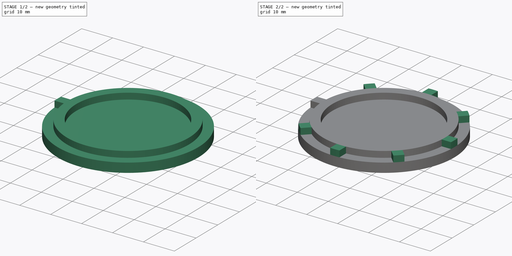
[diagram: build sequence overview — one tinted view per stage of 2, left to right]
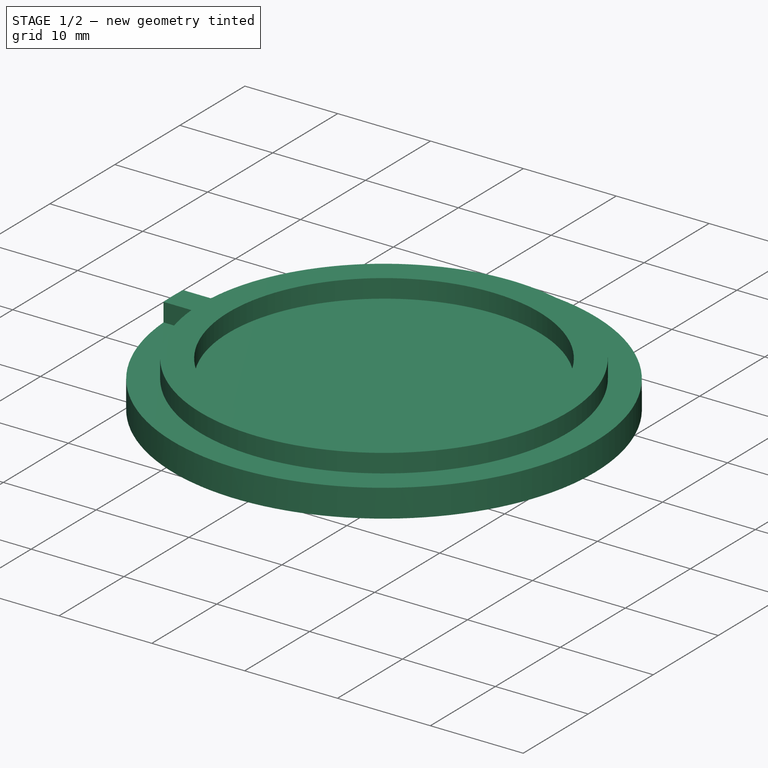
[diagram: stage 1 of 2 — iso view after this stage's code; geometry added in this stage tinted green]
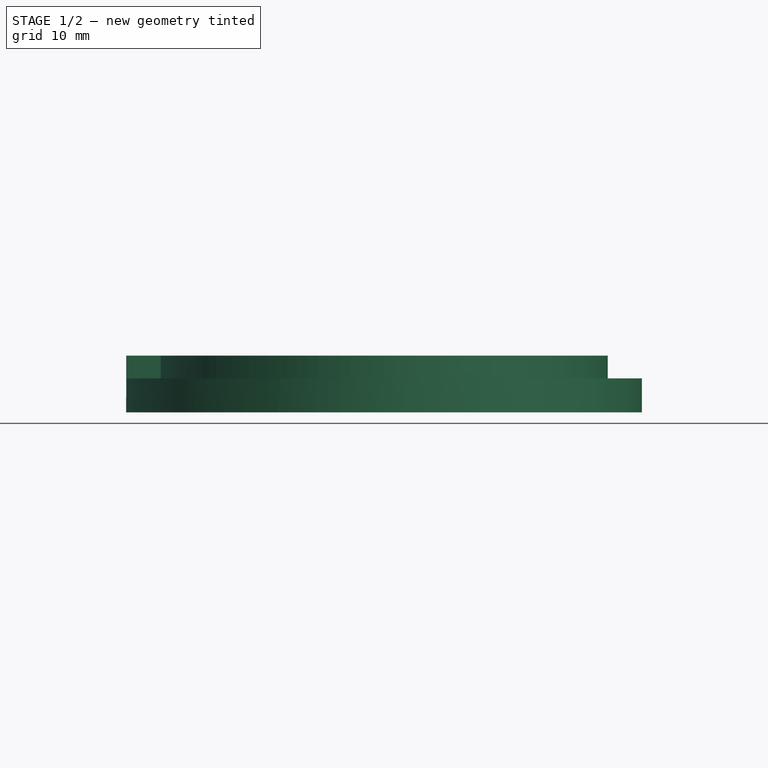
[diagram: stage 1 of 2 — front view after this stage's code; geometry added in this stage tinted green]
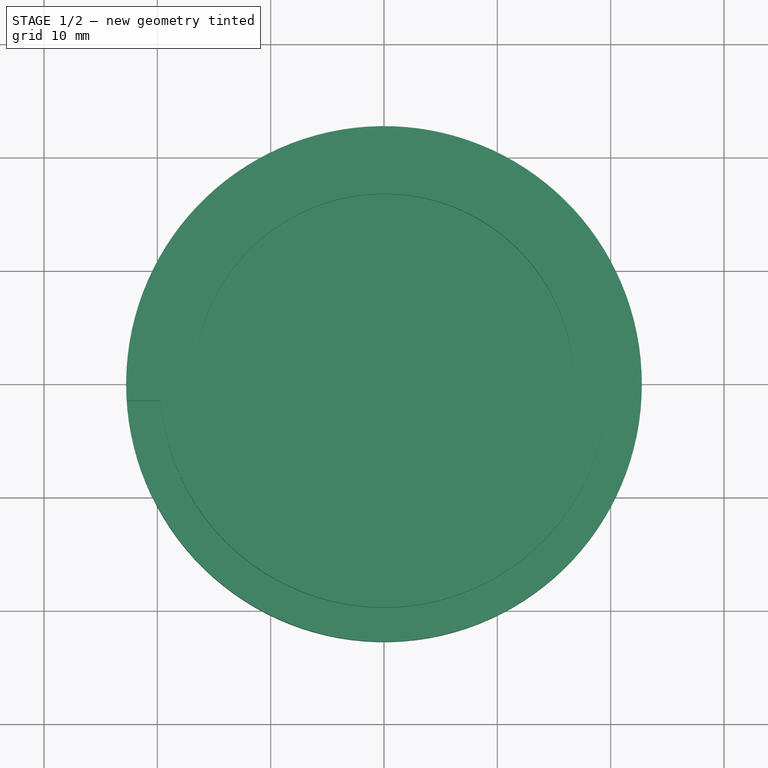
[diagram: stage 1 of 2 — top view after this stage's code; geometry added in this stage tinted green]
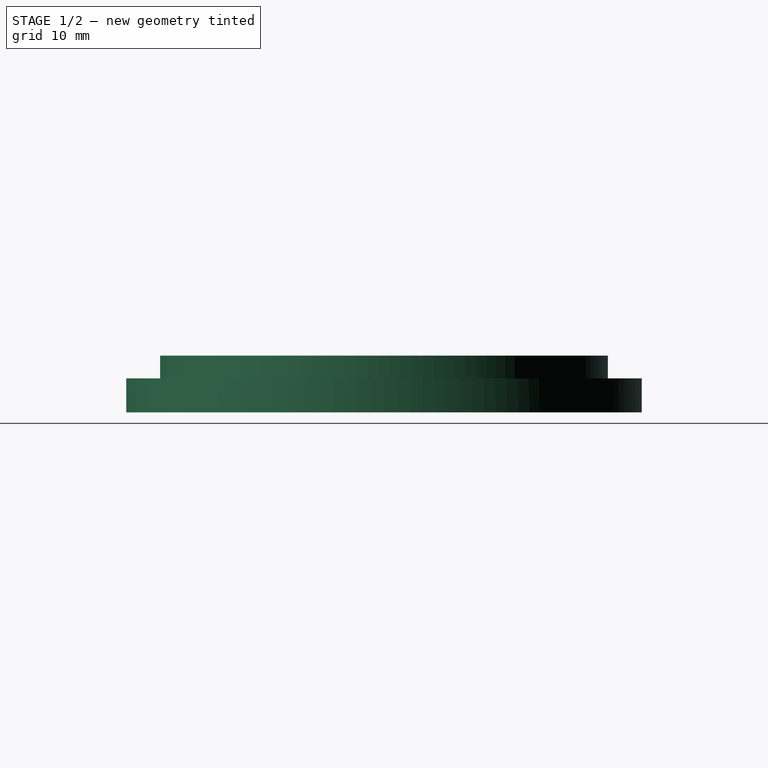
[diagram: stage 1 of 2 — right view after this stage's code; geometry added in this stage tinted green]
FCSTD DOCUMENT  (FreeCAD 0.21R33668 +26 (Git))
Label: Паз для чехла
License: All rights reserved
LicenseURL: https://en.wikipedia.org/wiki/All_rights_reserved
objects: Sketcher::SketchObject×2, PartDesign::Pad×2, PartDesign::Plane×1, PartDesign::PolarPattern×1, PartDesign::Body×1
note: 9 computed .brp shape members not serialized (recipe doc carries the construction recipe); baked Part::Feature solids carry a one-line shape summary decoded from their .brp

FEATURE [Sketcher::SketchObject] Sketch
  FullyConstrained = true
  MapMode = 5
  Support = -> [XY_Plane]
  sketch-geometry (1):
    g0: Circle CenterX=0 CenterY=0 CenterZ=0 NormalX=0 NormalY=0 NormalZ=1 AngleXU=0 Radius=22.75
  constraints (2):
    c: Coincident(g0,g-1)
    c: Diameter(g0) = 45.5
FEATURE [PartDesign::Pad] Pad
  Direction = (0,0,1)
  Length = 3
  Length2 = 10
  Profile = -> Sketch
  ReferenceAxis = -> Sketch [N_Axis]
  Type = 0
FEATURE [PartDesign::Plane] DatumPlane
  Length = 60
  MapMode = 5
  Placement = pos=(0,0,3) rot=(0,0,1;0rad)
  ResizeMode = 0
  Support = -> [Pad]
  Width = 60
FEATURE [Sketcher::SketchObject] Sketch001
  ExternalGeometry = -> [Pad]
  FullyConstrained = false
  MapMode = 5
  Placement = pos=(0,0,3) rot=(0,0,1;0rad)
  Support = -> [DatumPlane]
  sketch-geometry (11):
    g0: Circle CenterX=0 CenterY=0 CenterZ=0 NormalX=0 NormalY=0 NormalZ=1 AngleXU=0 Radius=16.75
    g1: GeomPoint X=0 Y=16.75 Z=0
    g2: GeomPoint X=0 Y=19.75 Z=0
    g3: GeomPoint X=0 Y=22.75 Z=0
    g4: ArcOfCircle CenterX=0 CenterY=0 CenterZ=0 NormalX=0 NormalY=0 NormalZ=1 AngleXU=0 Radius=19.75 StartAngle=3.21762 EndAngle=9.34876
    g5: LineSegment StartX=-19.693 StartY=1.5 StartZ=0 EndX=-22.7005 EndY=1.5 EndZ=0
    g6: LineSegment StartX=-19.693 StartY=-1.5 StartZ=0 EndX=-22.7005 EndY=-1.5 EndZ=0
    g7: LineSegment StartX=-19.75 StartY=0 StartZ=0 EndX=-19.693 EndY=1.5 EndZ=0
    g8: LineSegment StartX=-19.75 StartY=0 StartZ=0 EndX=-19.75 EndY=1.44642e-08 EndZ=0
    g9: LineSegment StartX=-19.75 StartY=0 StartZ=0 EndX=-19.693 EndY=-1.5 EndZ=0
    g10: ArcOfCircle CenterX=0 CenterY=0 CenterZ=0 NormalX=0 NormalY=0 NormalZ=1 AngleXU=0 Radius=22.75 StartAngle=3.07561 EndAngle=3.20757
  constraints (28):
    c: PointOnObject(g1,g0)
    c: PointOnObject(g3,g-3)
    c: PointOnObject(g3,g-2)
    c: PointOnObject(g2,g-2)
    c: PointOnObject(g1,g-2)
    c: DistanceY(g1,g2) = 3
    c: Coincident(g4,g0)
    c: PointOnObject(g2,g4)
    c: Coincident(g0,g-3)
    c: Horizontal(g5)
    c: PointOnObject(g6,g4)
    c: Horizontal(g6)
    c: PointOnObject(g5,g-3)
    c: PointOnObject(g7,g4)
    c: PointOnObject(g7,g-1)
    c: Coincident(g8,g7)
    c: Vertical(g8)
    c: Coincident(g9,g7)
    c: Coincident(g9,g6)
    c: Equal(g9,g7)
    c: DistanceY(g6,g5) = 3
    c: Coincident(g7,g5)
    c: Coincident(g10,g0)
    c: Coincident(g10,g5)
    c: Coincident(g10,g6)
    c: Coincident(g4,g5)
    c: PointOnObject(g4,g9)
    c: Diameter(g0) = 33.5
FEATURE [PartDesign::Pad] Pad001
  BaseFeature = -> Pad
  Direction = (0,0,1)
  Length = 2
  Length2 = 10
  Profile = -> Sketch001
  ReferenceAxis = -> Sketch001 [N_Axis]
  Type = 0
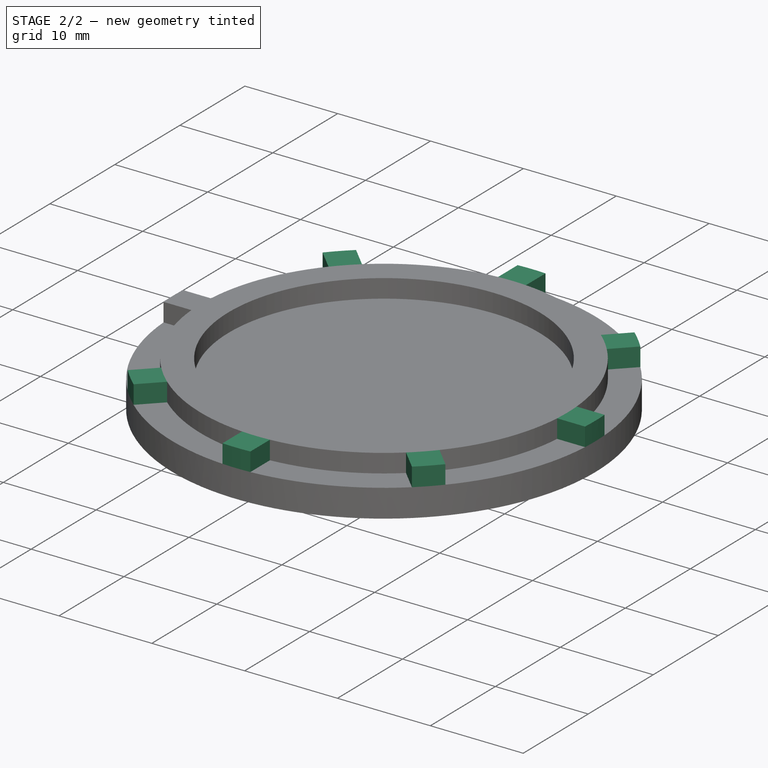
[diagram: stage 2 of 2 — iso view after this stage's code; geometry added in this stage tinted green]
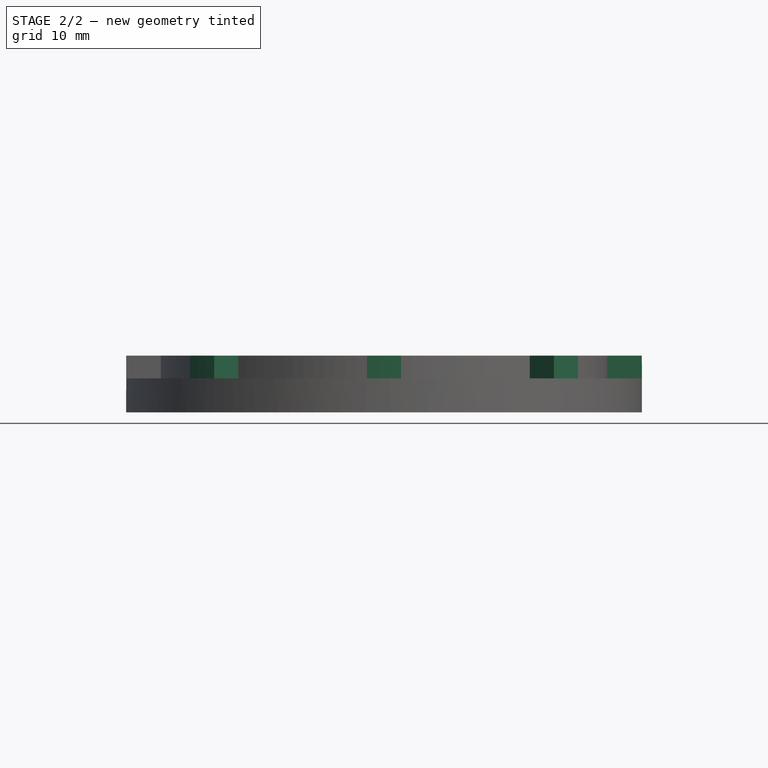
[diagram: stage 2 of 2 — front view after this stage's code; geometry added in this stage tinted green]
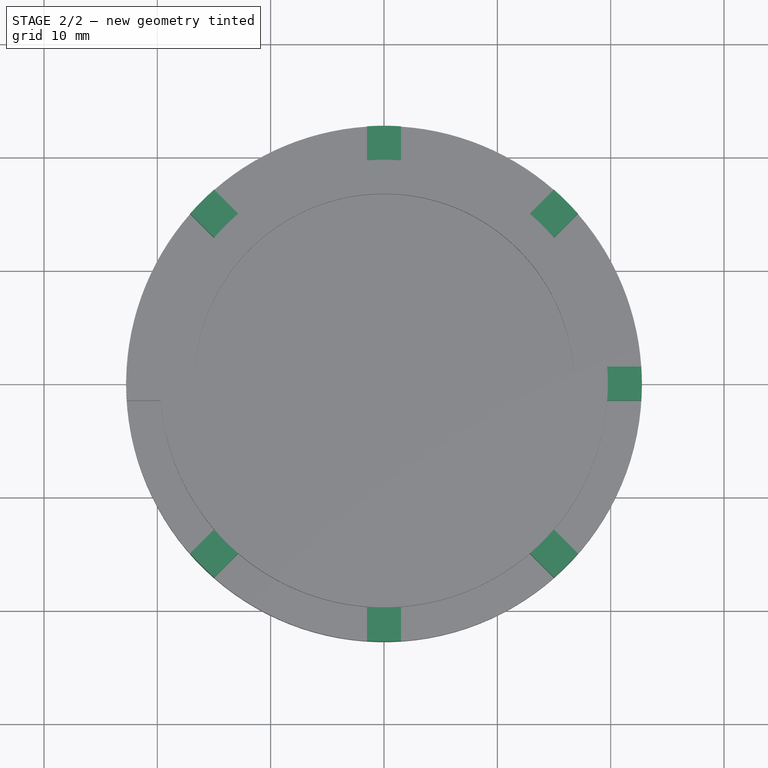
[diagram: stage 2 of 2 — top view after this stage's code; geometry added in this stage tinted green]
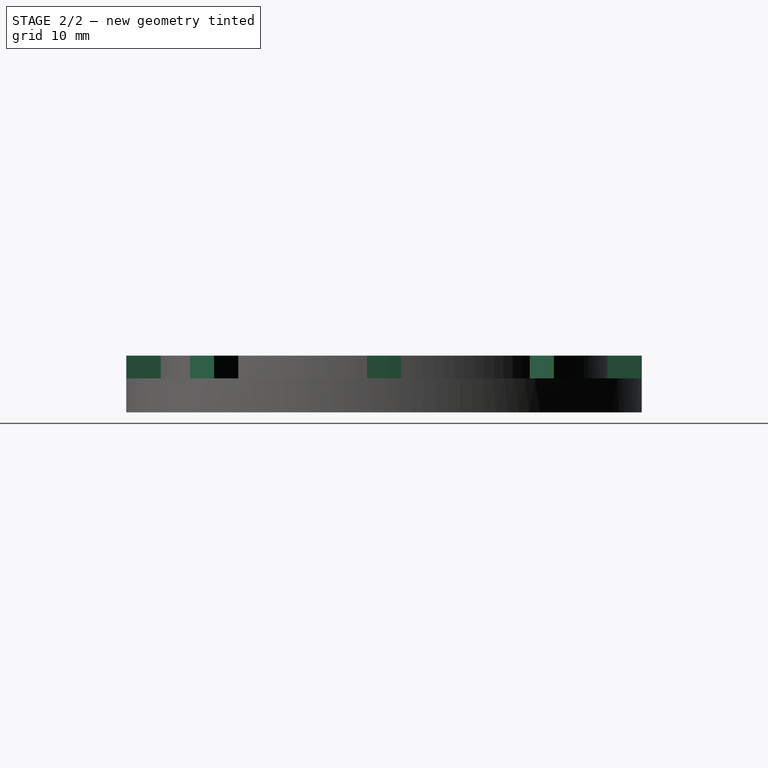
[diagram: stage 2 of 2 — right view after this stage's code; geometry added in this stage tinted green]
FEATURE [PartDesign::PolarPattern] PolarPattern
  Angle = 360
  Axis = -> Sketch001 [N_Axis]
  BaseFeature = -> Pad001
  Occurrences = 8
  Originals = -> [Pad001]
FEATURE [PartDesign::Body] Body  label="Тело"
  Group = -> [Sketch,Pad,DatumPlane,Sketch001,Pad001,PolarPattern]
  Origin = -> Origin
  Tip = -> PolarPattern
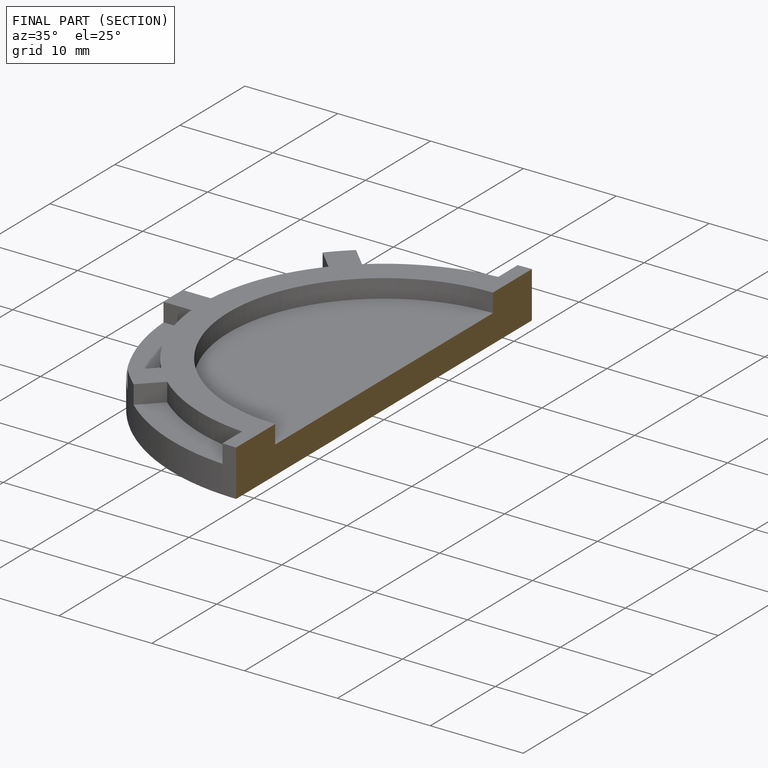
[diagram: finished part — half-section view (interior)]
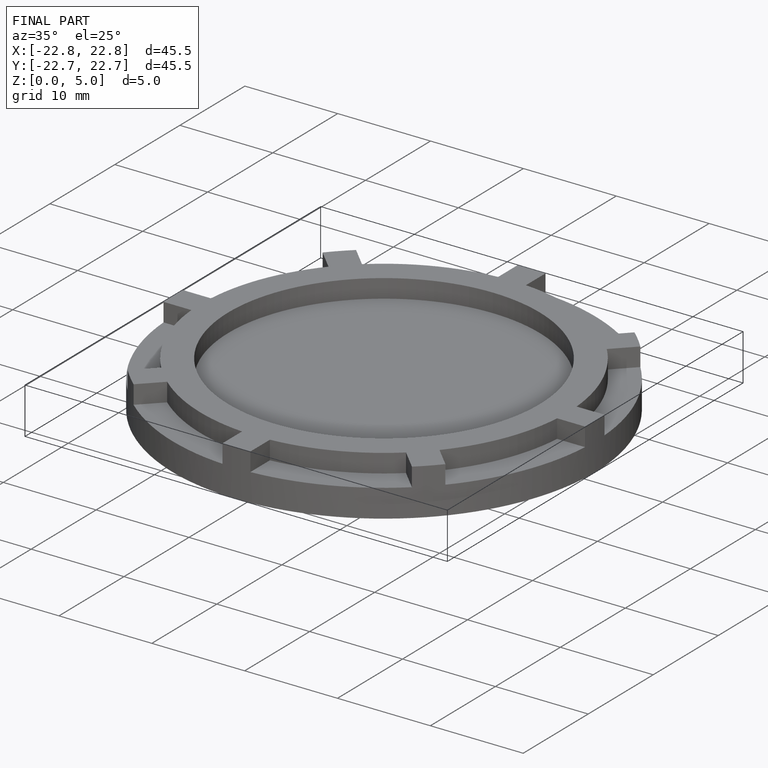
[diagram: finished part — iso view with bounding-box wireframe]
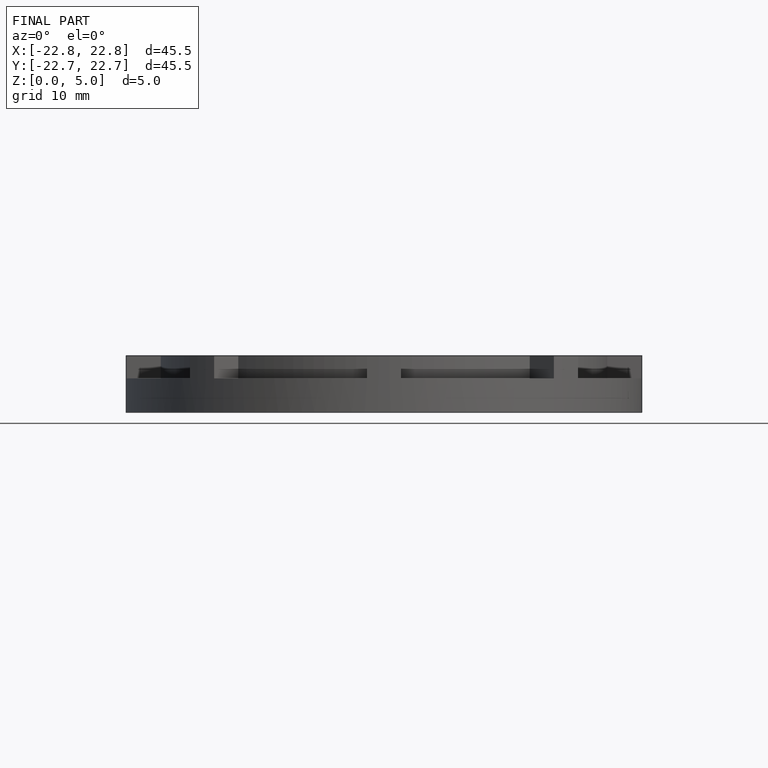
[diagram: finished part — front view with bounding-box wireframe]
